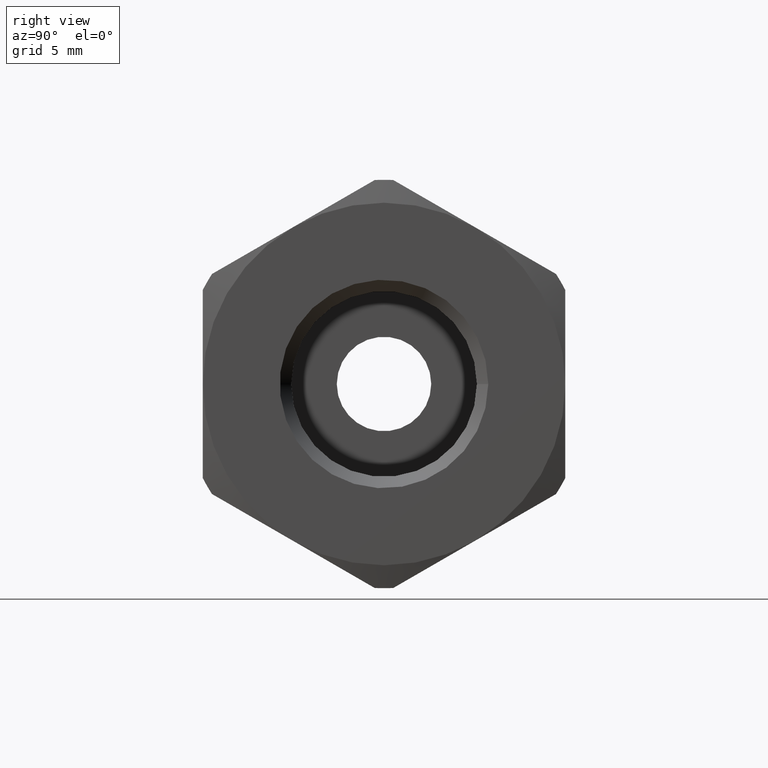
[diagram: clean part render]
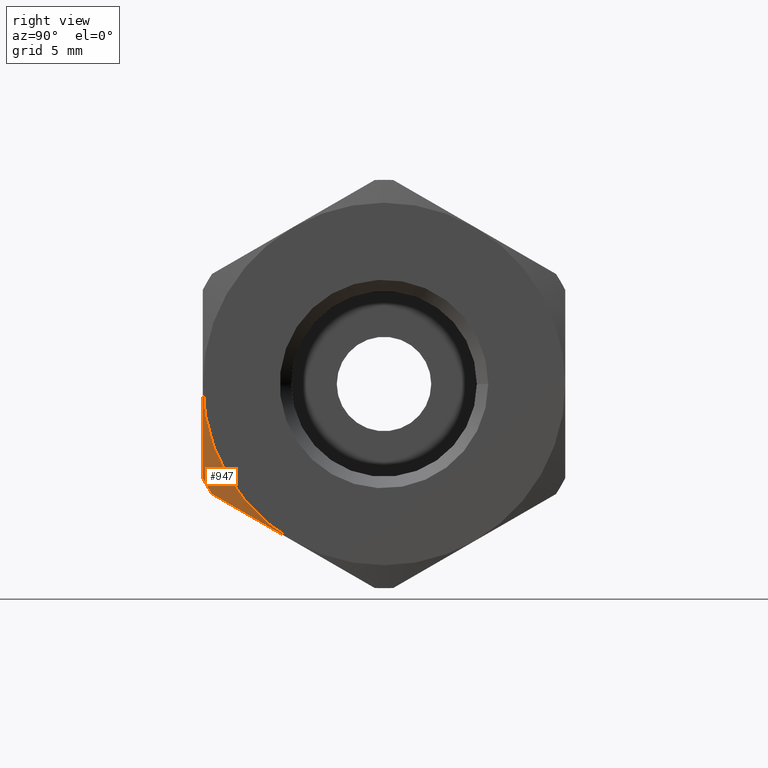
[diagram: same view with one face highlighted and labeled with its STEP entity id]
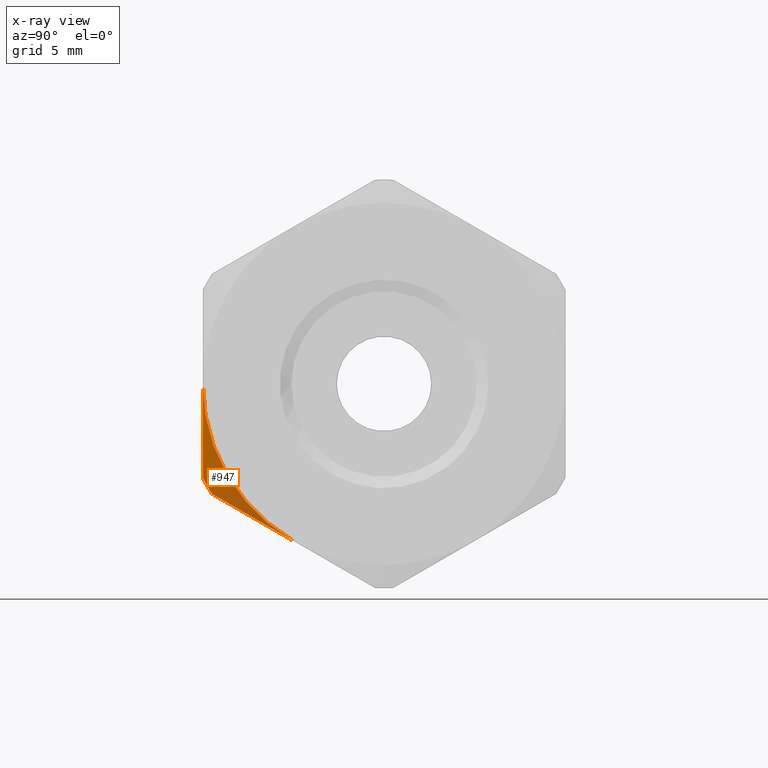
[diagram: x-ray of the same camera — body ghosted, the highlighted face saturated]
A machine part, right view. The second image highlights one B-rep face of the part: STEP entity #947.
The next image is the same camera in x-ray: the body ghosted, the highlighted face saturated — about 0% of this face is hidden behind the body in this view.
In plain terms, the highlighted conical surface has half-angle 75 deg.
Its self-contained STEP definition (entity closure, byte-faithful):
#121=CARTESIAN_POINT('',(25.500000000000004,-9.500000000000002,1.582068E-015));
#122=VERTEX_POINT('',#121);
#130=CARTESIAN_POINT('',(25.500000000000004,-4.750000000000005,-8.227241335952165));
#131=VERTEX_POINT('',#130);
#132=CARTESIAN_POINT('',(25.500000000000004,0.0,0.0));
#133=DIRECTION('',(1.0,0.0,0.0));
#134=DIRECTION('',(0.0,1.0,0.0));
#135=AXIS2_PLACEMENT_3D('',#132,#133,#134);
#136=CIRCLE('',#135,9.5);
#137=EDGE_CURVE('',#122,#131,#136,.T.);
#583=CARTESIAN_POINT('',(25.178460969082657,-9.013801121065569,-5.765534610933932));
#584=VERTEX_POINT('',#583);
#585=CARTESIAN_POINT('',(25.178460969082657,-9.013801121065555,-5.765534610933939));
#586=CARTESIAN_POINT('',(25.5,-6.755253002481332,-7.069507975176265));
#587=CARTESIAN_POINT('',(25.5,-4.750000000000004,-8.227241335952165));
#595=(BOUNDED_CURVE()B_SPLINE_CURVE(2,(#585,#586,#587),.UNSPECIFIED.,.F.,.U.)B_SPLINE_CURVE_WITH_KNOTS((3,3),(0.0,0.493628243022412),.UNSPECIFIED.)CURVE()GEOMETRIC_REPRESENTATION_ITEM()RATIONAL_B_SPLINE_CURVE((1.0,1.031095482841905,1.0))REPRESENTATION_ITEM(''));
#596=EDGE_CURVE('',#584,#131,#595,.T.);
#642=CARTESIAN_POINT('',(25.178460969082657,-9.500000000000004,-4.923413450036464));
#643=VERTEX_POINT('',#642);
#650=CARTESIAN_POINT('',(25.5,-9.500000000000002,1.582068E-015));
#651=CARTESIAN_POINT('',(25.5,-9.500000000000002,-2.315466721551809));
#652=CARTESIAN_POINT('',(25.178460969082657,-9.500000000000004,-4.923413450036446));
#660=(BOUNDED_CURVE()B_SPLINE_CURVE(2,(#650,#651,#652),.UNSPECIFIED.,.F.,.U.)B_SPLINE_CURVE_WITH_KNOTS((3,3),(0.493628243022412,0.987256486044824),.UNSPECIFIED.)CURVE()GEOMETRIC_REPRESENTATION_ITEM()RATIONAL_B_SPLINE_CURVE((1.0,1.031095482841898,1.0))REPRESENTATION_ITEM(''));
#661=EDGE_CURVE('',#122,#643,#660,.T.);
#930=CARTESIAN_POINT('',(25.339230484541329,0.0,0.0));
#931=DIRECTION('',(-1.0,0.0,0.0));
#932=DIRECTION('',(0.0,1.0,0.0));
#933=AXIS2_PLACEMENT_3D('',#930,#931,#932);
#934=CONICAL_SURFACE('',#933,10.1,75.000000000000185);
#935=ORIENTED_EDGE('',*,*,#596,.T.);
#936=ORIENTED_EDGE('',*,*,#137,.F.);
#937=ORIENTED_EDGE('',*,*,#661,.T.);
#938=CARTESIAN_POINT('',(25.178460969082657,0.0,0.0));
#939=DIRECTION('',(1.0,0.0,0.0));
#940=DIRECTION('',(0.0,1.0,0.0));
#941=AXIS2_PLACEMENT_3D('',#938,#939,#940);
#942=CIRCLE('',#941,10.700000000000001);
#943=EDGE_CURVE('',#643,#584,#942,.T.);
#944=ORIENTED_EDGE('',*,*,#943,.T.);
#945=EDGE_LOOP('',(#935,#936,#937,#944));
#946=FACE_OUTER_BOUND('',#945,.T.);
#947=ADVANCED_FACE('',(#946),#934,.T.);